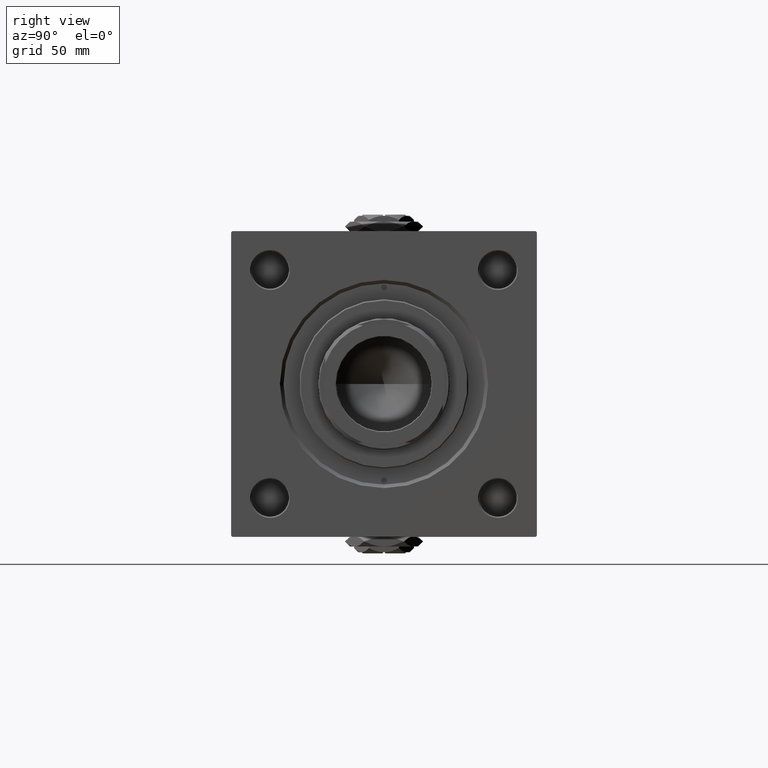
[diagram: clean part render]
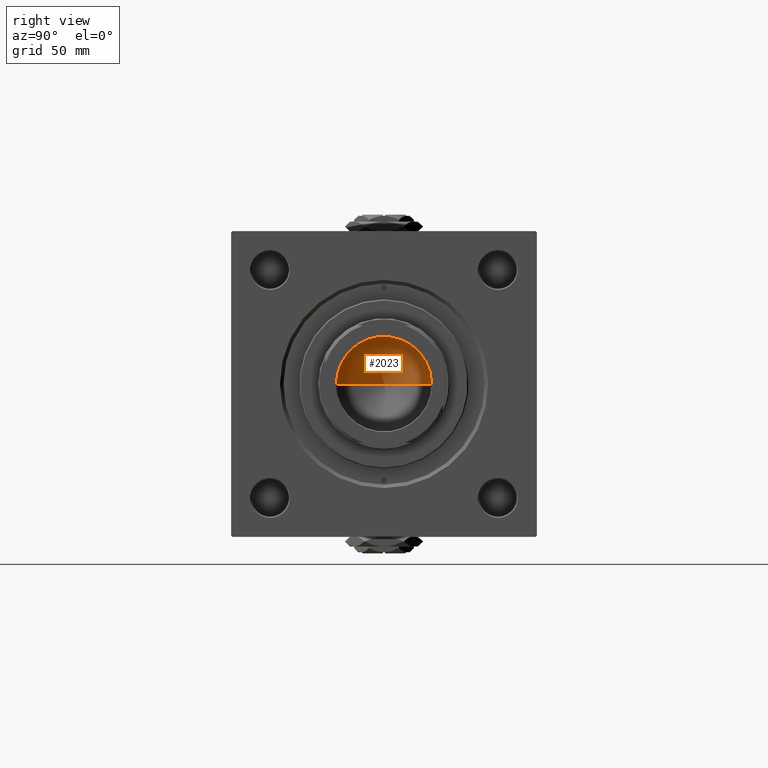
[diagram: same view with one face highlighted and labeled with its STEP entity id]
A machine part, right view. The second image highlights one B-rep face of the part: STEP entity #2023.
In plain terms, the highlighted conical surface has half-angle 59 deg.
Its self-contained STEP definition (entity closure, byte-faithful):
#1805 = AXIS2_PLACEMENT_3D ( 'NONE', #7339, #11626, #19370 ) ;
#2023 = ADVANCED_FACE ( 'NONE', ( #3298 ), #42040, .F. ) ;
#3091 = CARTESIAN_POINT ( 'NONE',  ( -1.584115414415908206E-14, 0.000000000000000000, 104.8325724646918928 ) ) ;
#3298 = FACE_OUTER_BOUND ( 'NONE', #22959, .T. ) ;
#3577 = DIRECTION ( 'NONE',  ( -0.000000000000000000, -0.000000000000000000, 1.000000000000000000 ) ) ;
#6784 = CARTESIAN_POINT ( 'NONE',  ( -20.24999999999998934, 2.479909768273389117E-15, 117.0000000000000142 ) ) ;
#7339 = CARTESIAN_POINT ( 'NONE',  ( 0.000000000000000000, 0.000000000000000000, 117.0000000000000142 ) ) ;
#10742 = LINE ( 'NONE', #39132, #49987 ) ;
#10831 = CARTESIAN_POINT ( 'NONE',  ( 20.24999999999998934, 0.000000000000000000, 117.0000000000000142 ) ) ;
#11626 = DIRECTION ( 'NONE',  ( -0.000000000000000000, -0.000000000000000000, 1.000000000000000000 ) ) ;
#12588 = EDGE_CURVE ( 'NONE', #33227, #40157, #10742, .T. ) ;
#14745 = DIRECTION ( 'NONE',  ( -0.8571673007021115565, 1.049727191138617710E-16, 0.5150380749100554878 ) ) ;
#18321 = ORIENTED_EDGE ( 'NONE', *, *, #18460, .T. ) ;
#18460 = EDGE_CURVE ( 'NONE', #40157, #29585, #44218, .T. ) ;
#19370 = DIRECTION ( 'NONE',  ( 1.000000000000000000, 0.000000000000000000, 0.000000000000000000 ) ) ;
#22959 = EDGE_LOOP ( 'NONE', ( #23948, #50829, #18321 ) ) ;
#23948 = ORIENTED_EDGE ( 'NONE', *, *, #42249, .F. ) ;
#24992 = CARTESIAN_POINT ( 'NONE',  ( 0.000000000000000000, 0.000000000000000000, 117.0000000000000142 ) ) ;
#29585 = VERTEX_POINT ( 'NONE', #34940 ) ;
#33227 = VERTEX_POINT ( 'NONE', #3091 ) ;
#34940 = CARTESIAN_POINT ( 'NONE',  ( 20.24999999999998934, 0.000000000000000000, 117.0000000000000142 ) ) ;
#35980 = VECTOR ( 'NONE', #51279, 1000.000000000000000 ) ;
#39132 = CARTESIAN_POINT ( 'NONE',  ( -20.24999999999998934, 2.479909768273389117E-15, 117.0000000000000142 ) ) ;
#40157 = VERTEX_POINT ( 'NONE', #6784 ) ;
#42040 = CONICAL_SURFACE ( 'NONE', #1805, 20.24999999999998934, 1.029744258676652979 ) ;
#42249 = EDGE_CURVE ( 'NONE', #33227, #29585, #47259, .T. ) ;
#44218 = CIRCLE ( 'NONE', #48503, 20.24999999999998934 ) ;
#47259 = LINE ( 'NONE', #10831, #35980 ) ;
#48503 = AXIS2_PLACEMENT_3D ( 'NONE', #24992, #3577, #52602 ) ;
#49987 = VECTOR ( 'NONE', #14745, 1000.000000000000000 ) ;
#50829 = ORIENTED_EDGE ( 'NONE', *, *, #12588, .T. ) ;
#51279 = DIRECTION ( 'NONE',  ( 0.8571673007021115565, 0.000000000000000000, 0.5150380749100554878 ) ) ;
#52602 = DIRECTION ( 'NONE',  ( 1.000000000000000000, 0.000000000000000000, 0.000000000000000000 ) ) ;